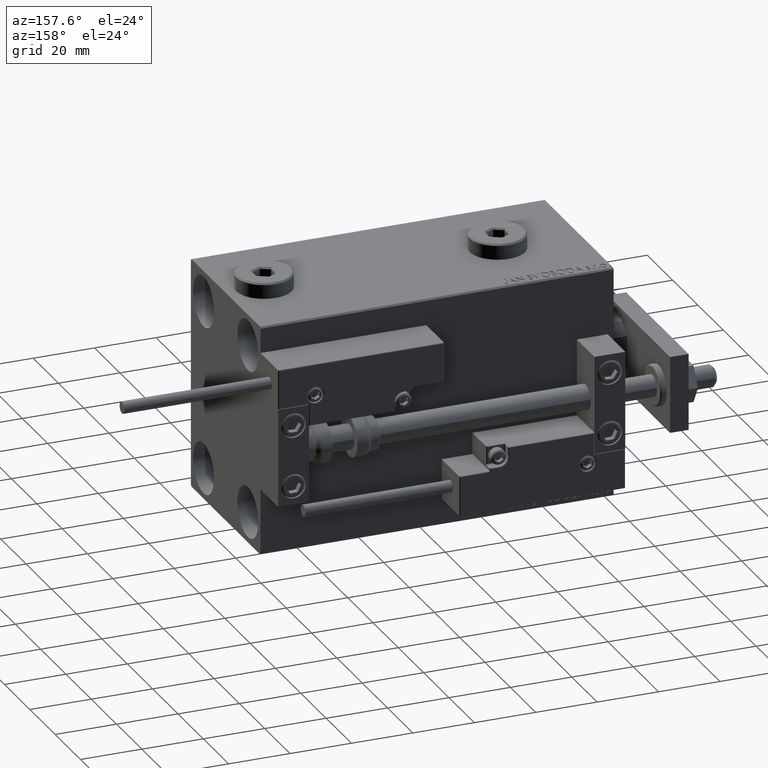
[diagram: clean part render]
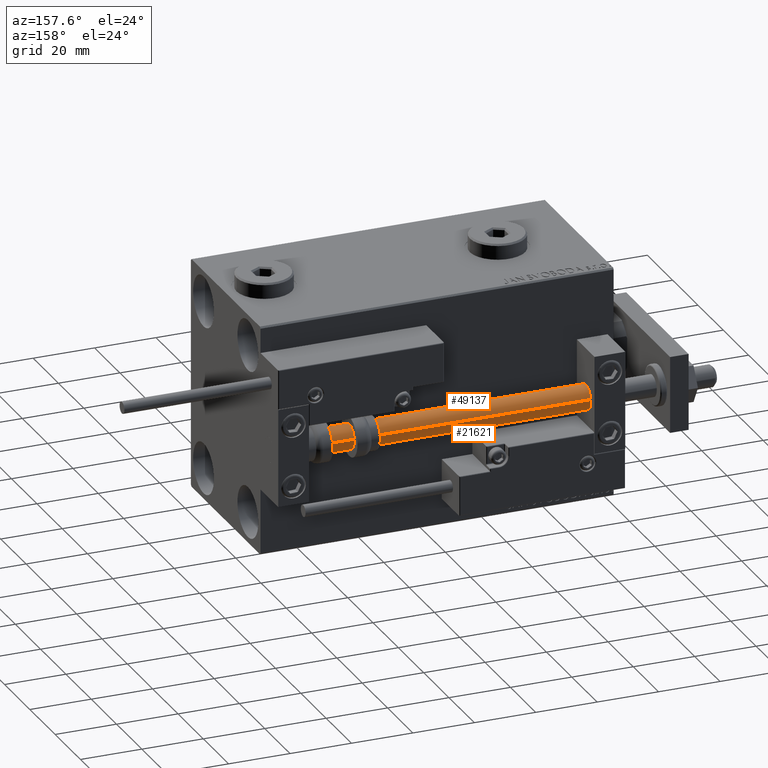
[diagram: same view with one multi-face feature highlighted, each face labeled with its STEP entity id]
A machine part, auxiliary view. The highlighted faces form ONE feature: a constant-radius fillet chain: 2 tangent blend faces with common blend radius 4 mm. The faces share edges in the B-rep.
Their STEP definitions:
[1] entity #21621 (Cylinder):
#177 = CARTESIAN_POINT ( 'NONE',  ( 0.000000000000000000, 0.000000000000000000, 115.0000000000000000 ) ) ;
#1407 = CIRCLE ( 'NONE', #10607, 4.000000000000000000 ) ;
#4346 = VERTEX_POINT ( 'NONE', #11993 ) ;
#5626 = DIRECTION ( 'NONE',  ( -1.000000000000000000, 0.000000000000000000, 0.000000000000000000 ) ) ;
#7029 = EDGE_CURVE ( 'NONE', #46884, #4346, #27571, .T. ) ;
#9790 = CARTESIAN_POINT ( 'NONE',  ( 0.000000000000000000, 0.000000000000000000, 115.0000000000000000 ) ) ;
#10607 = AXIS2_PLACEMENT_3D ( 'NONE', #177, #10873, #26792 ) ;
#10873 = DIRECTION ( 'NONE',  ( 0.000000000000000000, 0.000000000000000000, 1.000000000000000000 ) ) ;
#11993 = CARTESIAN_POINT ( 'NONE',  ( 4.000000000000000000, 4.898587196589412829E-16, 2.000000000000029310 ) ) ;
#12536 = CARTESIAN_POINT ( 'NONE',  ( -4.000000000000000000, 0.000000000000000000, 2.000000000000029310 ) ) ;
#13074 = VECTOR ( 'NONE', #50903, 1000.000000000000000 ) ;
#13111 = CIRCLE ( 'NONE', #48883, 4.000000000000000000 ) ;
#15995 = DIRECTION ( 'NONE',  ( -0.000000000000000000, -0.000000000000000000, 1.000000000000000000 ) ) ;
#17065 = VERTEX_POINT ( 'NONE', #12536 ) ;
#17124 = EDGE_LOOP ( 'NONE', ( #31256, #19735, #21689, #23028 ) ) ;
#17295 = AXIS2_PLACEMENT_3D ( 'NONE', #9790, #45227, #5626 ) ;
#19735 = ORIENTED_EDGE ( 'NONE', *, *, #21395, .F. ) ;
#21395 = EDGE_CURVE ( 'NONE', #45109, #46884, #1407, .T. ) ;
#21621 = ADVANCED_FACE ( 'NONE', ( #30363 ), #33254, .T. ) ;
#21689 = ORIENTED_EDGE ( 'NONE', *, *, #49615, .T. ) ;
#23028 = ORIENTED_EDGE ( 'NONE', *, *, #51115, .T. ) ;
#23055 = CARTESIAN_POINT ( 'NONE',  ( -4.000000000000000000, 0.000000000000000000, 115.0000000000000000 ) ) ;
#26792 = DIRECTION ( 'NONE',  ( 1.000000000000000000, 0.000000000000000000, 0.000000000000000000 ) ) ;
#27571 = LINE ( 'NONE', #35646, #39399 ) ;
#28969 = CARTESIAN_POINT ( 'NONE',  ( 4.000000000000000000, 4.898587196589412829E-16, 115.0000000000000000 ) ) ;
#30363 = FACE_OUTER_BOUND ( 'NONE', #17124, .T. ) ;
#31256 = ORIENTED_EDGE ( 'NONE', *, *, #7029, .F. ) ;
#33254 = CYLINDRICAL_SURFACE ( 'NONE', #17295, 4.000000000000000000 ) ;
#35526 = CARTESIAN_POINT ( 'NONE',  ( 0.000000000000000000, 0.000000000000000000, 2.000000000000029310 ) ) ;
#35646 = CARTESIAN_POINT ( 'NONE',  ( 4.000000000000000000, 4.898587196589412829E-16, 115.0000000000000000 ) ) ;
#39399 = VECTOR ( 'NONE', #43708, 1000.000000000000000 ) ;
#39782 = CARTESIAN_POINT ( 'NONE',  ( -4.000000000000000000, 0.000000000000000000, 115.0000000000000000 ) ) ;
#42340 = LINE ( 'NONE', #23055, #13074 ) ;
#43339 = DIRECTION ( 'NONE',  ( 1.000000000000000000, 0.000000000000000000, 0.000000000000000000 ) ) ;
#43708 = DIRECTION ( 'NONE',  ( -0.000000000000000000, -0.000000000000000000, -1.000000000000000000 ) ) ;
#45109 = VERTEX_POINT ( 'NONE', #39782 ) ;
#45227 = DIRECTION ( 'NONE',  ( -0.000000000000000000, -0.000000000000000000, -1.000000000000000000 ) ) ;
#46884 = VERTEX_POINT ( 'NONE', #28969 ) ;
#48883 = AXIS2_PLACEMENT_3D ( 'NONE', #35526, #15995, #43339 ) ;
#49615 = EDGE_CURVE ( 'NONE', #45109, #17065, #42340, .T. ) ;
#50903 = DIRECTION ( 'NONE',  ( -0.000000000000000000, -0.000000000000000000, -1.000000000000000000 ) ) ;
#51115 = EDGE_CURVE ( 'NONE', #17065, #4346, #13111, .T. ) ;
[2] entity #49137 (Cylinder):
#995 = DIRECTION ( 'NONE',  ( -0.000000000000000000, -0.000000000000000000, -1.000000000000000000 ) ) ;
#2205 = DIRECTION ( 'NONE',  ( 1.000000000000000000, 0.000000000000000000, 0.000000000000000000 ) ) ;
#4346 = VERTEX_POINT ( 'NONE', #11993 ) ;
#4772 = AXIS2_PLACEMENT_3D ( 'NONE', #48173, #995, #12487 ) ;
#5762 = ORIENTED_EDGE ( 'NONE', *, *, #7029, .T. ) ;
#7029 = EDGE_CURVE ( 'NONE', #46884, #4346, #27571, .T. ) ;
#11057 = AXIS2_PLACEMENT_3D ( 'NONE', #17070, #49069, #32936 ) ;
#11993 = CARTESIAN_POINT ( 'NONE',  ( 4.000000000000000000, 4.898587196589412829E-16, 2.000000000000029310 ) ) ;
#12487 = DIRECTION ( 'NONE',  ( -1.000000000000000000, 0.000000000000000000, 0.000000000000000000 ) ) ;
#12536 = CARTESIAN_POINT ( 'NONE',  ( -4.000000000000000000, 0.000000000000000000, 2.000000000000029310 ) ) ;
#13074 = VECTOR ( 'NONE', #50903, 1000.000000000000000 ) ;
#13931 = AXIS2_PLACEMENT_3D ( 'NONE', #18403, #50405, #2205 ) ;
#17065 = VERTEX_POINT ( 'NONE', #12536 ) ;
#17070 = CARTESIAN_POINT ( 'NONE',  ( 0.000000000000000000, 0.000000000000000000, 115.0000000000000000 ) ) ;
#17118 = ORIENTED_EDGE ( 'NONE', *, *, #36951, .F. ) ;
#17173 = CYLINDRICAL_SURFACE ( 'NONE', #4772, 4.000000000000000000 ) ;
#18403 = CARTESIAN_POINT ( 'NONE',  ( 0.000000000000000000, 0.000000000000000000, 2.000000000000029310 ) ) ;
#19423 = CIRCLE ( 'NONE', #11057, 4.000000000000000000 ) ;
#20062 = FACE_OUTER_BOUND ( 'NONE', #39192, .T. ) ;
#23055 = CARTESIAN_POINT ( 'NONE',  ( -4.000000000000000000, 0.000000000000000000, 115.0000000000000000 ) ) ;
#25792 = ORIENTED_EDGE ( 'NONE', *, *, #46234, .T. ) ;
#27571 = LINE ( 'NONE', #35646, #39399 ) ;
#28969 = CARTESIAN_POINT ( 'NONE',  ( 4.000000000000000000, 4.898587196589412829E-16, 115.0000000000000000 ) ) ;
#32936 = DIRECTION ( 'NONE',  ( 1.000000000000000000, 0.000000000000000000, 0.000000000000000000 ) ) ;
#35646 = CARTESIAN_POINT ( 'NONE',  ( 4.000000000000000000, 4.898587196589412829E-16, 115.0000000000000000 ) ) ;
#36951 = EDGE_CURVE ( 'NONE', #46884, #45109, #19423, .T. ) ;
#39192 = EDGE_LOOP ( 'NONE', ( #17118, #5762, #25792, #39478 ) ) ;
#39399 = VECTOR ( 'NONE', #43708, 1000.000000000000000 ) ;
#39478 = ORIENTED_EDGE ( 'NONE', *, *, #49615, .F. ) ;
#39782 = CARTESIAN_POINT ( 'NONE',  ( -4.000000000000000000, 0.000000000000000000, 115.0000000000000000 ) ) ;
#42340 = LINE ( 'NONE', #23055, #13074 ) ;
#43060 = CIRCLE ( 'NONE', #13931, 4.000000000000000000 ) ;
#43708 = DIRECTION ( 'NONE',  ( -0.000000000000000000, -0.000000000000000000, -1.000000000000000000 ) ) ;
#45109 = VERTEX_POINT ( 'NONE', #39782 ) ;
#46234 = EDGE_CURVE ( 'NONE', #4346, #17065, #43060, .T. ) ;
#46884 = VERTEX_POINT ( 'NONE', #28969 ) ;
#48173 = CARTESIAN_POINT ( 'NONE',  ( 0.000000000000000000, 0.000000000000000000, 115.0000000000000000 ) ) ;
#49069 = DIRECTION ( 'NONE',  ( 0.000000000000000000, 0.000000000000000000, 1.000000000000000000 ) ) ;
#49137 = ADVANCED_FACE ( 'NONE', ( #20062 ), #17173, .T. ) ;
#49615 = EDGE_CURVE ( 'NONE', #45109, #17065, #42340, .T. ) ;
#50405 = DIRECTION ( 'NONE',  ( -0.000000000000000000, -0.000000000000000000, 1.000000000000000000 ) ) ;
#50903 = DIRECTION ( 'NONE',  ( -0.000000000000000000, -0.000000000000000000, -1.000000000000000000 ) ) ;